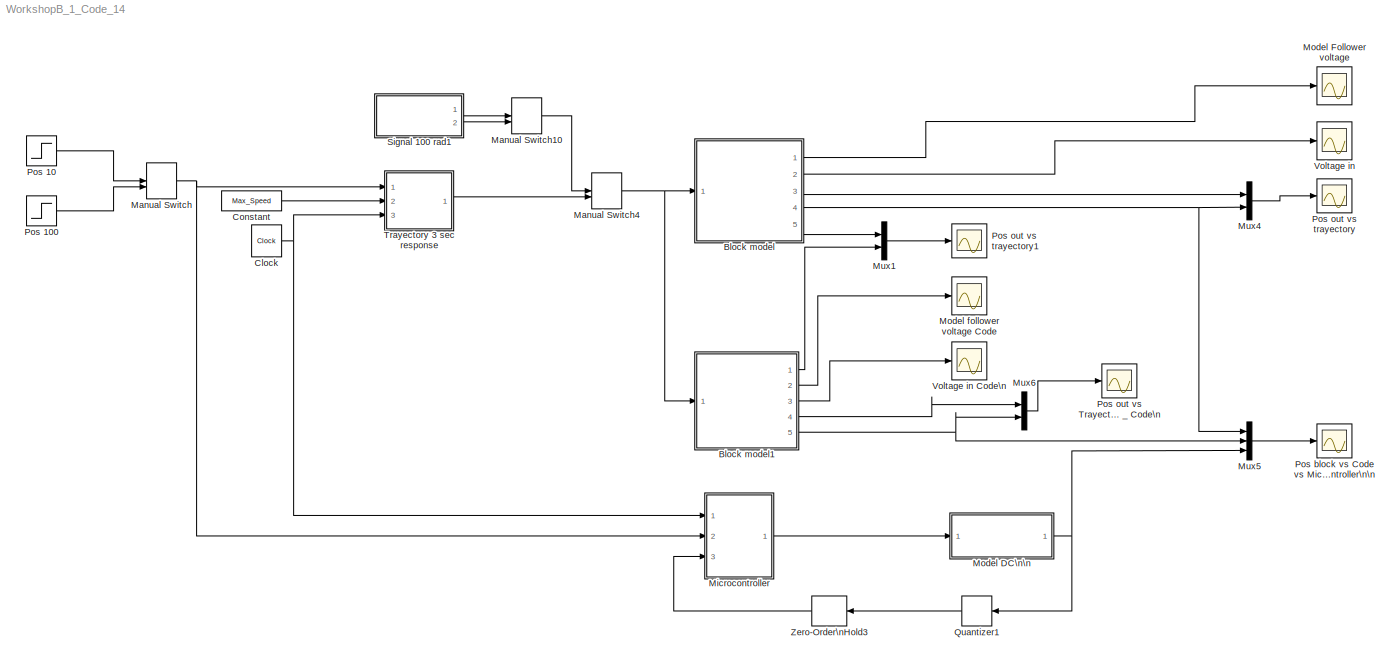
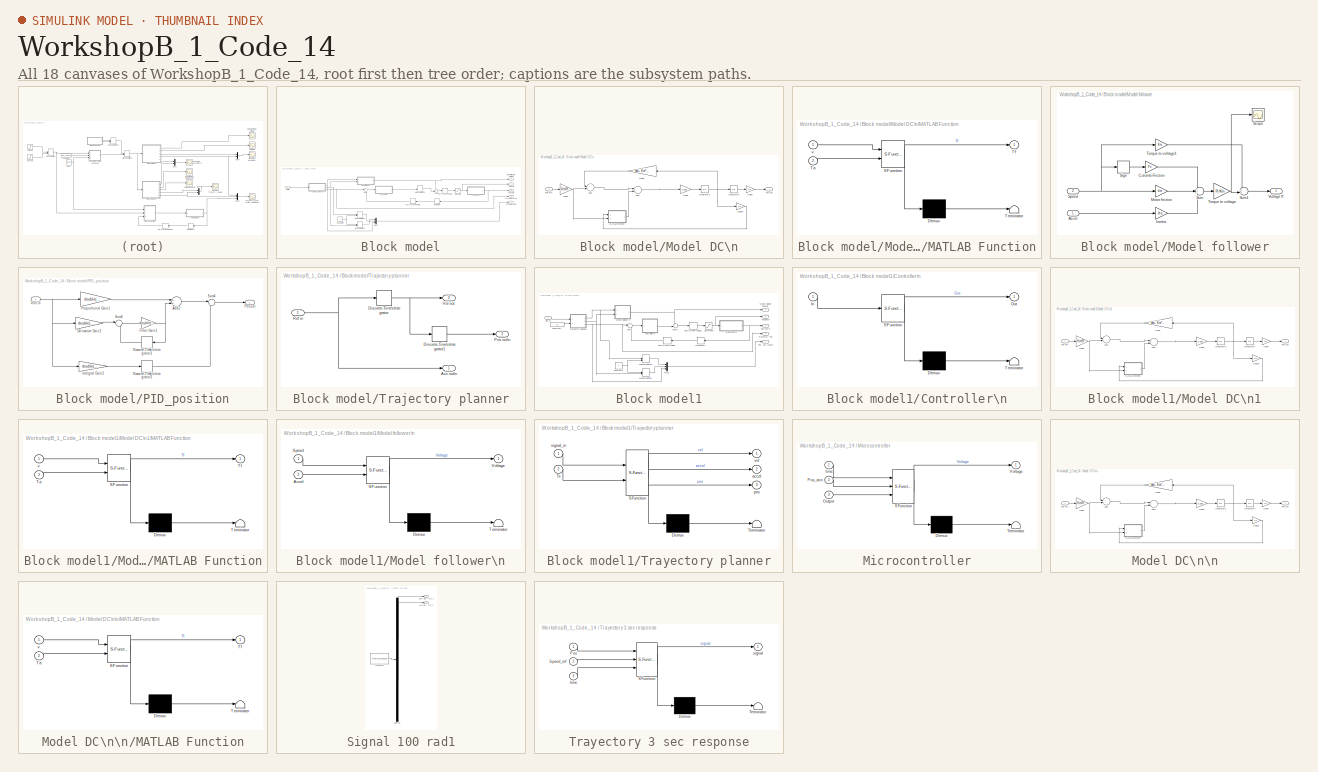
[diagram: thumbnail index - all 18 canvases of the model, root first then tree order]
MODEL WorkshopB_1_Code_14
KIND model
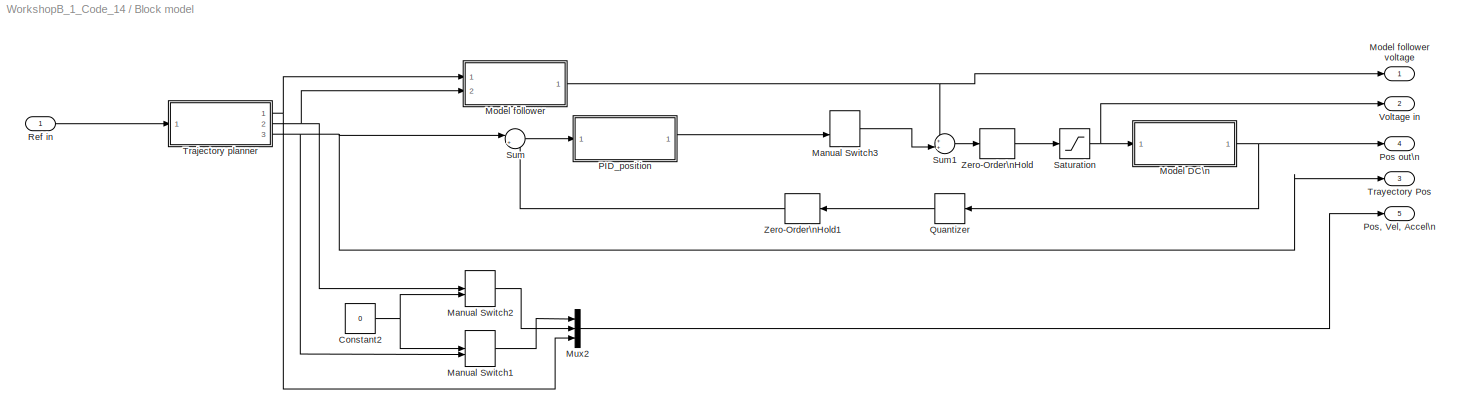
BLOCK [SubSystem] Block model
  Ports = [1, 5]
  RequestExecContextInheritance = off
  SID = 424
  Variant = off
BLOCK [Constant] Block model/Constant2
  SID = 488
  Value = 0
BLOCK [ManualSwitch] Block model/Manual Switch1
  CurrentSetting = 0
  SID = 489
BLOCK [ManualSwitch] Block model/Manual Switch2
  SID = 490
BLOCK [ManualSwitch] Block model/Manual Switch3
  CurrentSetting = 0
  SID = 491
BLOCK [SubSystem] Block model/Model DC\n
  Ports = [1, 1]
  RequestExecContextInheritance = off
  SID = 492
  Variant = off
BLOCK [Sum] Block model/Model DC\n/Add2
  InputSameDT = off
  Inputs = -+
  OutDataTypeStr = Inherit: Inherit via internal rule
  Ports = [2, 1]
  SID = 494
  SaturateOnIntegerOverflow = off
BLOCK [Sum] Block model/Model DC\n/Add3
  InputSameDT = off
  Inputs = +-
  OutDataTypeStr = Inherit: Inherit via internal rule
  Ports = [2, 1]
  SID = 495
  SaturateOnIntegerOverflow = off
BLOCK [Gain] Block model/Model DC\n/Gain10
  Gain = 1/n
  OutDataTypeStr = Inherit: Inherit via internal rule
  ParamDataTypeStr = Inherit: Inherit via internal rule
  SID = 496
  SaturateOnIntegerOverflow = off
BLOCK [Gain] Block model/Model DC\n/Gain2
  Gain = Km/R
  OutDataTypeStr = Inherit: Inherit via internal rule
  ParamDataTypeStr = Inherit: Inherit via internal rule
  SID = 497
  SaturateOnIntegerOverflow = off
BLOCK [Gain] Block model/Model DC\n/Gain3
  Gain = dm+ Km*Kemf/R
  OutDataTypeStr = Inherit: Inherit via internal rule
  ParamDataTypeStr = Inherit: Inherit via internal rule
  SID = 498
  SaturateOnIntegerOverflow = off
BLOCK [Gain] Block model/Model DC\n/Gain5
  Gain = 1/Jeq
  OutDataTypeStr = Inherit: Inherit via internal rule
  ParamDataTypeStr = Inherit: Inherit via internal rule
  SID = 499
  SaturateOnIntegerOverflow = off
BLOCK [Gain] Block model/Model DC\n/Gain9
  Gain = 1/n
  OutDataTypeStr = Inherit: Inherit via internal rule
  ParamDataTypeStr = Inherit: Inherit via internal rule
  SID = 500
  SaturateOnIntegerOverflow = off
BLOCK [Integrator] Block model/Model DC\n/Integrator3
  Ports = [1, 1]
  SID = 501
BLOCK [Integrator] Block model/Model DC\n/Integrator4
  Ports = [1, 1]
  SID = 502
BLOCK [SubSystem] Block model/Model DC\n/MATLAB Function
  ErrorFcn = Stateflow.Translate.translate
  PermitHierarchicalResolution = ParametersOnly
  Ports = [2, 1]
  RequestExecContextInheritance = off
  SFBlockType = MATLAB Function
  SID = 503
  TreatAsAtomicUnit = on
  Variant = off
BLOCK [Demux] Block model/Model DC\n/MATLAB Function/ Demux 
  Outputs = 1
  Ports = [1, 1]
  SID = 503::24
BLOCK [S-Function] Block model/Model DC\n/MATLAB Function/ SFunction 
  EnableBusSupport = on
  FunctionName = sf_sfun
  PortCounts = [2 2]
  Ports = [2, 2]
  SFunctionDeploymentMode = off
  SID = 503::23
  Tag = Stateflow S-Function WorkshopB_1_Code_14 2
BLOCK [Terminator] Block model/Model DC\n/MATLAB Function/ Terminator 
  SID = 503::25
BLOCK [Inport] Block model/Model DC\n/MATLAB Function/Ta
  IconDisplay = Port number
  Port = 2
  SID = 503::19
BLOCK [Outport] Block model/Model DC\n/MATLAB Function/Tf
  IconDisplay = Port number
  SID = 503::5
BLOCK [Inport] Block model/Model DC\n/MATLAB Function/v
  IconDisplay = Port number
  SID = 503::1
BLOCK [Outport] Block model/Model DC\n/Pos out
  IconDisplay = Port number
  SID = 504
BLOCK [Inport] Block model/Model DC\n/Volt in\n
  IconDisplay = Port number
  SID = 493
BLOCK [SubSystem] Block model/Model follower
  Ports = [2, 1]
  RequestExecContextInheritance = off
  SID = 505
  Variant = off
BLOCK [Outport] Block model/Model follower voltage
  IconDisplay = Port number
  SID = 429
BLOCK [Inport] Block model/Model follower/Accel
  IconDisplay = Port number
  SID = 507
BLOCK [Gain] Block model/Model follower/Culomb Friction
  Gain = Fc
  OutDataTypeStr = Inherit: Inherit via internal rule
  ParamDataTypeStr = Inherit: Inherit via internal rule
  SID = 508
  SaturateOnIntegerOverflow = off
BLOCK [Gain] Block model/Model follower/Inertia 
  Gain = Jeq
  OutDataTypeStr = Inherit: Inherit via internal rule
  ParamDataTypeStr = Inherit: Inherit via internal rule
  SID = 509
  SaturateOnIntegerOverflow = off
BLOCK [Gain] Block model/Model follower/Motor friction
  Gain = dm
  OutDataTypeStr = Inherit: Inherit via internal rule
  ParamDataTypeStr = Inherit: Inherit via internal rule
  SID = 510
  SaturateOnIntegerOverflow = off
BLOCK [Scope] Block model/Model follower/Scope
  DataFormat = Array
  Decimation = 1
  Grid = on
  LimitDataPoints = on
  MaxDataPoints = 5000
  Ports = [1]
  SID = 511
  SampleInput = off
  SampleTime = -1
  SaveName = ScopeData5
  SaveToWorkspace = off
  ShowLegends = off
  TickLabels = OneTimeTick
  TimeRange = auto
  YMax = 10
  YMin = -10
  ZoomMode = on
BLOCK [Signum] Block model/Model follower/Sign
  SID = 512
BLOCK [Inport] Block model/Model follower/Speed
  IconDisplay = Port number
  Port = 2
  SID = 506
BLOCK [Sum] Block model/Model follower/Sum
  IconShape = round
  InputSameDT = off
  Inputs = +++
  OutDataTypeStr = Inherit: Inherit via internal rule
  Ports = [3, 1]
  SID = 513
  SaturateOnIntegerOverflow = off
BLOCK [Sum] Block model/Model follower/Sum1
  IconShape = round
  InputSameDT = off
  Inputs = ++|
  OutDataTypeStr = Inherit: Inherit via internal rule
  Ports = [2, 1]
  SID = 514
  SaturateOnIntegerOverflow = off
BLOCK [Gain] Block model/Model follower/Torque to voltage
  Gain = R/Km
  OutDataTypeStr = Inherit: Inherit via internal rule
  ParamDataTypeStr = Inherit: Inherit via internal rule
  SID = 515
  SaturateOnIntegerOverflow = off
BLOCK [Gain] Block model/Model follower/Torque to voltage1
  Gain = Km
  OutDataTypeStr = Inherit: Inherit via internal rule
  ParamDataTypeStr = Inherit: Inherit via internal rule
  SID = 516
  SaturateOnIntegerOverflow = off
BLOCK [Outport] Block model/Model follower/Voltage ff
  IconDisplay = Port number
  SID = 517
BLOCK [Mux] Block model/Mux2
  DisplayOption = bar
  Inputs = 3
  Ports = [3, 1]
  SID = 518
BLOCK [SubSystem] Block model/PID_position
  Ports = [1, 1]
  RequestExecContextInheritance = off
  SID = 519
  Variant = off
BLOCK [Sum] Block model/PID_position/Add2
  InputSameDT = off
  OutDataTypeStr = Inherit: Inherit via internal rule
  Ports = [2, 1]
  SID = 521
  SaturateOnIntegerOverflow = off
BLOCK [Gain] Block model/PID_position/Derivative Gain2
  Gain = double(Dpos)
  OutDataTypeStr = Inherit: Inherit via internal rule
  ParamDataTypeStr = Inherit: Inherit via internal rule
  SID = 522
  SaturateOnIntegerOverflow = off
BLOCK [DiscreteIntegrator] Block model/PID_position/Discrete-Time\nIntegrator1
  ICPrevOutput = DiscIntNeverNeededParam
  ICPrevScaledInput = DiscIntNeverNeededParam
  InitialConditionSetting = State (most efficient)
  Ports = [1, 1]
  SID = 523
  SampleTime = Ts
BLOCK [DiscreteIntegrator] Block model/PID_position/Discrete-Time\nIntegrator2
  ICPrevOutput = DiscIntNeverNeededParam
  ICPrevScaledInput = DiscIntNeverNeededParam
  InitialConditionSetting = State (most efficient)
  Ports = [1, 1]
  SID = 524
  SampleTime = Ts
BLOCK [Gain] Block model/PID_position/Filter Gain1
  Gain = double(Npos)
  OutDataTypeStr = Inherit: Inherit via internal rule
  ParamDataTypeStr = Inherit: Inherit via internal rule
  SID = 525
  SaturateOnIntegerOverflow = off
BLOCK [Gain] Block model/PID_position/Integral Gain2
  Gain = double(Ipos)
  OutDataTypeStr = Inherit: Inherit via internal rule
  ParamDataTypeStr = Inherit: Inherit via internal rule
  SID = 526
  SaturateOnIntegerOverflow = off
BLOCK [Outport] Block model/PID_position/Pos out
  IconDisplay = Port number
  SID = 530
BLOCK [Gain] Block model/PID_position/Proportional Gain1
  Gain = double(Ppos)
  OutDataTypeStr = Inherit: Inherit via internal rule
  ParamDataTypeStr = Inherit: Inherit via internal rule
  SID = 527
  SaturateOnIntegerOverflow = off
BLOCK [Sum] Block model/PID_position/Sum2
  IconShape = round
  InputSameDT = off
  Inputs = |+-
  OutDataTypeStr = Inherit: Inherit via internal rule
  Ports = [2, 1]
  SID = 528
  SaturateOnIntegerOverflow = off
BLOCK [Sum] Block model/PID_position/Sum4
  IconShape = round
  InputSameDT = off
  Inputs = |++
  OutDataTypeStr = Inherit: Inherit via internal rule
  Ports = [2, 1]
  SID = 529
  SaturateOnIntegerOverflow = off
BLOCK [Inport] Block model/PID_position/Volt in
  IconDisplay = Port number
  SID = 520
BLOCK [Outport] Block model/Pos out\n
  IconDisplay = Port number
  Port = 4
  SID = 430
BLOCK [Outport] Block model/Pos, Vel, Accel\n
  IconDisplay = Port number
  Port = 5
  SID = 544
BLOCK [Quantizer] Block model/Quantizer
  QuantizationInterval = Pulses
  SID = 531
  SampleTime = Ts
BLOCK [Inport] Block model/Ref in
  IconDisplay = Port number
  SID = 425
BLOCK [Saturate] Block model/Saturation
  InputPortMap = u0
  LowerLimit = -24
  Ports = [1, 1]
  SID = 686
  UpperLimit = 24
BLOCK [Sum] Block model/Sum
  IconShape = round
  InputSameDT = off
  Inputs = |+-
  OutDataTypeStr = Inherit: Inherit via internal rule
  Ports = [2, 1]
  SID = 532
  SaturateOnIntegerOverflow = off
BLOCK [Sum] Block model/Sum1
  IconShape = round
  InputSameDT = off
  Inputs = ++|
  OutDataTypeStr = Inherit: Inherit via internal rule
  Ports = [2, 1]
  SID = 533
  SaturateOnIntegerOverflow = off
BLOCK [SubSystem] Block model/Trajectory planner
  Ports = [1, 3]
  RequestExecContextInheritance = off
  SID = 534
  Variant = off
BLOCK [Outport] Block model/Trajectory planner/Acc out\n
  IconDisplay = Port number
  SID = 538
BLOCK [DiscreteIntegrator] Block model/Trajectory planner/Discrete-Time\nIntegrator
  ICPrevOutput = DiscIntNeverNeededParam
  ICPrevScaledInput = DiscIntNeverNeededParam
  InitialConditionSetting = State (most efficient)
  Ports = [1, 1]
  SID = 536
  SampleTime = Ts
BLOCK [DiscreteIntegrator] Block model/Trajectory planner/Discrete-Time\nIntegrator1
  ICPrevOutput = DiscIntNeverNeededParam
  ICPrevScaledInput = DiscIntNeverNeededParam
  InitialConditionSetting = State (most efficient)
  Ports = [1, 1]
  SID = 537
  SampleTime = Ts
BLOCK [Outport] Block model/Trajectory planner/Pos out\n
  IconDisplay = Port number
  Port = 3
  SID = 540
BLOCK [Inport] Block model/Trajectory planner/Ref in
  IconDisplay = Port number
  SID = 535
BLOCK [Outport] Block model/Trajectory planner/Vel out
  IconDisplay = Port number
  Port = 2
  SID = 539
BLOCK [Outport] Block model/Trayectory Pos
  IconDisplay = Port number
  Port = 3
  SID = 428
BLOCK [Outport] Block model/Voltage in
  IconDisplay = Port number
  Port = 2
  SID = 543
BLOCK [ZeroOrderHold] Block model/Zero-Order\nHold
  SID = 541
  SampleTime = Ts
BLOCK [ZeroOrderHold] Block model/Zero-Order\nHold1
  SID = 542
  SampleTime = Ts
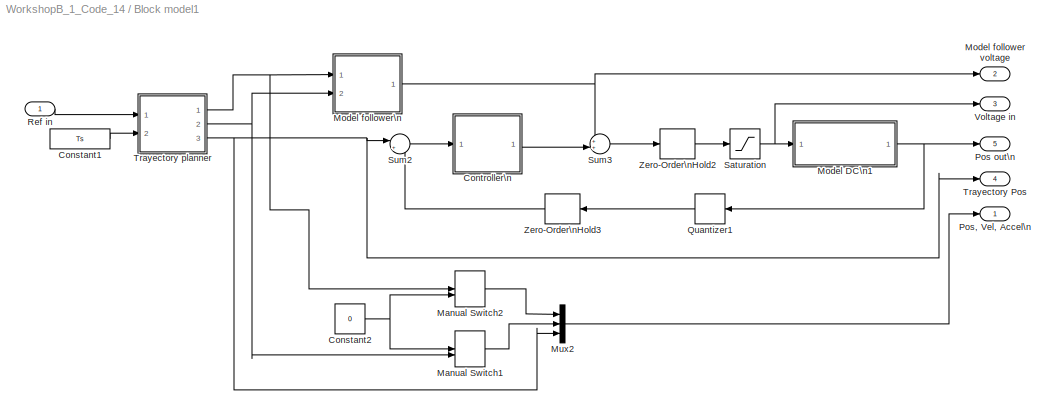
BLOCK [SubSystem] Block model1
  Ports = [1, 5]
  RequestExecContextInheritance = off
  SID = 545
  Variant = off
BLOCK [Constant] Block model1/Constant1
  SID = 607
  Value = Ts
BLOCK [Constant] Block model1/Constant2
  SID = 629
  Value = 0
BLOCK [SubSystem] Block model1/Controller\n
  ErrorFcn = Stateflow.Translate.translate
  PermitHierarchicalResolution = ParametersOnly
  Ports = [1, 1]
  RequestExecContextInheritance = off
  SFBlockType = MATLAB Function
  SID = 608
  SystemSampleTime = Ts
  TreatAsAtomicUnit = on
  Variant = off
BLOCK [Demux] Block model1/Controller\n/ Demux 
  Outputs = 1
  Ports = [1, 1]
  SID = 608::27
BLOCK [S-Function] Block model1/Controller\n/ SFunction 
  EnableBusSupport = on
  FunctionName = sf_sfun
  PortCounts = [1 2]
  Ports = [1, 2]
  SFunctionDeploymentMode = off
  SID = 608::26
  Tag = Stateflow S-Function WorkshopB_1_Code_14 3
BLOCK [Terminator] Block model1/Controller\n/ Terminator 
  SID = 608::28
BLOCK [Inport] Block model1/Controller\n/In
  IconDisplay = Port number
  SID = 608::1
BLOCK [Outport] Block model1/Controller\n/Out
  IconDisplay = Port number
  SID = 608::5
BLOCK [ManualSwitch] Block model1/Manual Switch1
  CurrentSetting = 0
  SID = 630
BLOCK [ManualSwitch] Block model1/Manual Switch2
  SID = 631
BLOCK [SubSystem] Block model1/Model DC\n1
  Ports = [1, 1]
  RequestExecContextInheritance = off
  SID = 609
  Variant = off
BLOCK [Sum] Block model1/Model DC\n1/Add2
  InputSameDT = off
  Inputs = -+
  OutDataTypeStr = Inherit: Inherit via internal rule
  Ports = [2, 1]
  SID = 611
  SaturateOnIntegerOverflow = off
BLOCK [Sum] Block model1/Model DC\n1/Add3
  InputSameDT = off
  Inputs = +-
  OutDataTypeStr = Inherit: Inherit via internal rule
  Ports = [2, 1]
  SID = 612
  SaturateOnIntegerOverflow = off
BLOCK [Gain] Block model1/Model DC\n1/Gain10
  Gain = 1/n
  OutDataTypeStr = Inherit: Inherit via internal rule
  ParamDataTypeStr = Inherit: Inherit via internal rule
  SID = 613
  SaturateOnIntegerOverflow = off
BLOCK [Gain] Block model1/Model DC\n1/Gain2
  Gain = Km/R
  OutDataTypeStr = Inherit: Inherit via internal rule
  ParamDataTypeStr = Inherit: Inherit via internal rule
  SID = 614
  SaturateOnIntegerOverflow = off
BLOCK [Gain] Block model1/Model DC\n1/Gain3
  Gain = dm+ Km*Kemf/R
  OutDataTypeStr = Inherit: Inherit via internal rule
  ParamDataTypeStr = Inherit: Inherit via internal rule
  SID = 615
  SaturateOnIntegerOverflow = off
BLOCK [Gain] Block model1/Model DC\n1/Gain5
  Gain = 1/Jeq
  OutDataTypeStr = Inherit: Inherit via internal rule
  ParamDataTypeStr = Inherit: Inherit via internal rule
  SID = 616
  SaturateOnIntegerOverflow = off
BLOCK [Gain] Block model1/Model DC\n1/Gain9
  Gain = 1/n
  OutDataTypeStr = Inherit: Inherit via internal rule
  ParamDataTypeStr = Inherit: Inherit via internal rule
  SID = 617
  SaturateOnIntegerOverflow = off
BLOCK [Integrator] Block model1/Model DC\n1/Integrator3
  Ports = [1, 1]
  SID = 618
BLOCK [Integrator] Block model1/Model DC\n1/Integrator4
  Ports = [1, 1]
  SID = 619
BLOCK [SubSystem] Block model1/Model DC\n1/MATLAB Function
  ErrorFcn = Stateflow.Translate.translate
  PermitHierarchicalResolution = ParametersOnly
  Ports = [2, 1]
  RequestExecContextInheritance = off
  SFBlockType = MATLAB Function
  SID = 620
  TreatAsAtomicUnit = on
  Variant = off
BLOCK [Demux] Block model1/Model DC\n1/MATLAB Function/ Demux 
  Outputs = 1
  Ports = [1, 1]
  SID = 620::24
BLOCK [S-Function] Block model1/Model DC\n1/MATLAB Function/ SFunction 
  EnableBusSupport = on
  FunctionName = sf_sfun
  PortCounts = [2 2]
  Ports = [2, 2]
  SFunctionDeploymentMode = off
  SID = 620::23
  Tag = Stateflow S-Function WorkshopB_1_Code_14 8
BLOCK [Terminator] Block model1/Model DC\n1/MATLAB Function/ Terminator 
  SID = 620::25
BLOCK [Inport] Block model1/Model DC\n1/MATLAB Function/Ta
  IconDisplay = Port number
  Port = 2
  SID = 620::19
BLOCK [Outport] Block model1/Model DC\n1/MATLAB Function/Tf
  IconDisplay = Port number
  SID = 620::5
BLOCK [Inport] Block model1/Model DC\n1/MATLAB Function/v
  IconDisplay = Port number
  SID = 620::1
BLOCK [Outport] Block model1/Model DC\n1/Pos out
  IconDisplay = Port number
  SID = 621
BLOCK [Inport] Block model1/Model DC\n1/Volt in\n
  IconDisplay = Port number
  SID = 610
BLOCK [Outport] Block model1/Model follower voltage
  IconDisplay = Port number
  Port = 2
  SID = 603
BLOCK [SubSystem] Block model1/Model follower\n
  ErrorFcn = Stateflow.Translate.translate
  PermitHierarchicalResolution = ParametersOnly
  Ports = [2, 1]
  RequestExecContextInheritance = off
  SFBlockType = MATLAB Function
  SID = 622
  SystemSampleTime = Ts
  TreatAsAtomicUnit = on
  Variant = off
BLOCK [Demux] Block model1/Model follower\n/ Demux 
  Outputs = 1
  Ports = [1, 1]
  SID = 622::27
BLOCK [S-Function] Block model1/Model follower\n/ SFunction 
  EnableBusSupport = on
  FunctionName = sf_sfun
  PortCounts = [2 2]
  Ports = [2, 2]
  SFunctionDeploymentMode = off
  SID = 622::26
  Tag = Stateflow S-Function WorkshopB_1_Code_14 9
BLOCK [Terminator] Block model1/Model follower\n/ Terminator 
  SID = 622::28
BLOCK [Inport] Block model1/Model follower\n/Accel
  IconDisplay = Port number
  Port = 2
  SID = 622::31
BLOCK [Inport] Block model1/Model follower\n/Speed
  IconDisplay = Port number
  SID = 622::1
BLOCK [Outport] Block model1/Model follower\n/Voltage
  IconDisplay = Port number
  SID = 622::5
BLOCK [Mux] Block model1/Mux2
  DisplayOption = bar
  Inputs = 3
  Ports = [3, 1]
  SID = 632
BLOCK [Outport] Block model1/Pos out\n
  IconDisplay = Port number
  Port = 5
  SID = 605
BLOCK [Outport] Block model1/Pos, Vel, Accel\n
  IconDisplay = Port number
  SID = 606
BLOCK [Quantizer] Block model1/Quantizer1
  QuantizationInterval = Pulses
  SID = 623
  SampleTime = Ts
BLOCK [Inport] Block model1/Ref in
  IconDisplay = Port number
  SID = 546
BLOCK [Saturate] Block model1/Saturation
  InputPortMap = u0
  LowerLimit = -24
  Ports = [1, 1]
  SID = 687
  UpperLimit = 24
BLOCK [Sum] Block model1/Sum2
  IconShape = round
  InputSameDT = off
  Inputs = |+-
  OutDataTypeStr = Inherit: Inherit via internal rule
  Ports = [2, 1]
  SID = 624
  SaturateOnIntegerOverflow = off
BLOCK [Sum] Block model1/Sum3
  IconShape = round
  InputSameDT = off
  Inputs = ++|
  OutDataTypeStr = Inherit: Inherit via internal rule
  Ports = [2, 1]
  SID = 625
  SaturateOnIntegerOverflow = off
BLOCK [Outport] Block model1/Trayectory Pos
  IconDisplay = Port number
  Port = 4
  SID = 602
BLOCK [SubSystem] Block model1/Trayectory planner
  ErrorFcn = Stateflow.Translate.translate
  PermitHierarchicalResolution = ParametersOnly
  Ports = [2, 3]
  RequestExecContextInheritance = off
  SFBlockType = MATLAB Function
  SID = 626
  SystemSampleTime = Ts
  TreatAsAtomicUnit = on
  Variant = off
BLOCK [Demux] Block model1/Trayectory planner/ Demux 
  Outputs = 1
  Ports = [1, 1]
  SID = 626::27
BLOCK [S-Function] Block model1/Trayectory planner/ SFunction 
  EnableBusSupport = on
  FunctionName = sf_sfun
  PortCounts = [2 4]
  Ports = [2, 4]
  SFunctionDeploymentMode = off
  SID = 626::26
  Tag = Stateflow S-Function WorkshopB_1_Code_14 10
BLOCK [Terminator] Block model1/Trayectory planner/ Terminator 
  SID = 626::28
BLOCK [Inport] Block model1/Trayectory planner/Ts
  IconDisplay = Port number
  Port = 2
  SID = 626::31
BLOCK [Outport] Block model1/Trayectory planner/accel
  IconDisplay = Port number
  Port = 2
  SID = 626::30
BLOCK [Outport] Block model1/Trayectory planner/pos
  IconDisplay = Port number
  Port = 3
  SID = 626::5
BLOCK [Inport] Block model1/Trayectory planner/signal_in
  IconDisplay = Port number
  SID = 626::1
BLOCK [Outport] Block model1/Trayectory planner/vel
  IconDisplay = Port number
  SID = 626::29
BLOCK [Outport] Block model1/Voltage in
  IconDisplay = Port number
  Port = 3
  SID = 604
BLOCK [ZeroOrderHold] Block model1/Zero-Order\nHold2
  SID = 627
  SampleTime = Ts
BLOCK [ZeroOrderHold] Block model1/Zero-Order\nHold3
  SID = 628
  SampleTime = Ts
BLOCK [Clock] Clock
  Decimation = 1
  DisplayTime = on
  SID = 156
BLOCK [Constant] Constant
  SID = 166
  Value = Max_Speed
BLOCK [ManualSwitch] Manual Switch
  SID = 159
BLOCK [ManualSwitch] Manual Switch10
  CurrentSetting = 0
  SID = 319
BLOCK [ManualSwitch] Manual Switch4
  CurrentSetting = 0
  SID = 290
BLOCK [SubSystem] Microcontroller
  ErrorFcn = Stateflow.Translate.translate
  PermitHierarchicalResolution = ParametersOnly
  Ports = [3, 1]
  RequestExecContextInheritance = off
  SFBlockType = MATLAB Function
  SID = 635
  SystemSampleTime = Ts
  TreatAsAtomicUnit = on
  Variant = off
BLOCK [Demux] Microcontroller/ Demux 
  Outputs = 1
  Ports = [1, 1]
  SID = 635::27
BLOCK [S-Function] Microcontroller/ SFunction 
  EnableBusSupport = on
  FunctionName = sf_sfun
  PortCounts = [3 2]
  Ports = [3, 2]
  SFunctionDeploymentMode = off
  SID = 635::26
  Tag = Stateflow S-Function WorkshopB_1_Code_14 1
BLOCK [Terminator] Microcontroller/ Terminator 
  SID = 635::28
BLOCK [Inport] Microcontroller/Output
  IconDisplay = Port number
  Port = 3
  SID = 635::1
BLOCK [Inport] Microcontroller/Pos_aim
  IconDisplay = Port number
  Port = 2
  SID = 635::19
BLOCK [Outport] Microcontroller/Voltage
  IconDisplay = Port number
  SID = 635::5
BLOCK [Inport] Microcontroller/time
  IconDisplay = Port number
  SID = 635::29
BLOCK [SubSystem] Model DC\n\n
  Ports = [1, 1]
  RequestExecContextInheritance = off
  SID = 640
  Variant = off
BLOCK [Sum] Model DC\n\n/Add2
  InputSameDT = off
  Inputs = -+
  OutDataTypeStr = Inherit: Inherit via internal rule
  Ports = [2, 1]
  SID = 642
  SaturateOnIntegerOverflow = off
BLOCK [Sum] Model DC\n\n/Add3
  InputSameDT = off
  Inputs = +-
  OutDataTypeStr = Inherit: Inherit via internal rule
  Ports = [2, 1]
  SID = 643
  SaturateOnIntegerOverflow = off
BLOCK [Gain] Model DC\n\n/Gain10
  Gain = 1/n
  OutDataTypeStr = Inherit: Inherit via internal rule
  ParamDataTypeStr = Inherit: Inherit via internal rule
  SID = 644
  SaturateOnIntegerOverflow = off
BLOCK [Gain] Model DC\n\n/Gain2
  Gain = Km/R
  OutDataTypeStr = Inherit: Inherit via internal rule
  ParamDataTypeStr = Inherit: Inherit via internal rule
  SID = 645
  SaturateOnIntegerOverflow = off
BLOCK [Gain] Model DC\n\n/Gain3
  Gain = dm+ Km*Kemf/R
  OutDataTypeStr = Inherit: Inherit via internal rule
  ParamDataTypeStr = Inherit: Inherit via internal rule
  SID = 646
  SaturateOnIntegerOverflow = off
BLOCK [Gain] Model DC\n\n/Gain5
  Gain = 1/Jeq
  OutDataTypeStr = Inherit: Inherit via internal rule
  ParamDataTypeStr = Inherit: Inherit via internal rule
  SID = 647
  SaturateOnIntegerOverflow = off
BLOCK [Gain] Model DC\n\n/Gain9
  Gain = 1/n
  OutDataTypeStr = Inherit: Inherit via internal rule
  ParamDataTypeStr = Inherit: Inherit via internal rule
  SID = 648
  SaturateOnIntegerOverflow = off
BLOCK [Integrator] Model DC\n\n/Integrator3
  Ports = [1, 1]
  SID = 649
BLOCK [Integrator] Model DC\n\n/Integrator4
  Ports = [1, 1]
  SID = 650
BLOCK [SubSystem] Model DC\n\n/MATLAB Function
  ErrorFcn = Stateflow.Translate.translate
  PermitHierarchicalResolution = ParametersOnly
  Ports = [2, 1]
  RequestExecContextInheritance = off
  SFBlockType = MATLAB Function
  SID = 651
  TreatAsAtomicUnit = on
  Variant = off
BLOCK [Demux] Model DC\n\n/MATLAB Function/ Demux 
  Outputs = 1
  Ports = [1, 1]
  SID = 651::24
BLOCK [S-Function] Model DC\n\n/MATLAB Function/ SFunction 
  EnableBusSupport = on
  FunctionName = sf_sfun
  PortCounts = [2 2]
  Ports = [2, 2]
  SFunctionDeploymentMode = off
  SID = 651::23
  Tag = Stateflow S-Function WorkshopB_1_Code_14 6
BLOCK [Terminator] Model DC\n\n/MATLAB Function/ Terminator 
  SID = 651::25
BLOCK [Inport] Model DC\n\n/MATLAB Function/Ta
  IconDisplay = Port number
  Port = 2
  SID = 651::19
BLOCK [Outport] Model DC\n\n/MATLAB Function/Tf
  IconDisplay = Port number
  SID = 651::5
BLOCK [Inport] Model DC\n\n/MATLAB Function/v
  IconDisplay = Port number
  SID = 651::1
BLOCK [Outport] Model DC\n\n/Pos out
  IconDisplay = Port number
  SID = 652
BLOCK [Inport] Model DC\n\n/Volt in\n
  IconDisplay = Port number
  SID = 641
BLOCK [Scope] Model Follower voltage
  DataFormat = Array
  Decimation = 1
  Grid = on
  LimitDataPoints = on
  MaxDataPoints = 5000
  Ports = [1]
  SID = 239
  SampleInput = off
  SampleTime = -1
  SaveName = ScopeData2
  SaveToWorkspace = off
  ShowLegends = off
  TickLabels = OneTimeTick
  TimeRange = auto
  YMax = 524.30498
  YMin = -74.05416
  ZoomMode = on
BLOCK [Scope] Model follower voltage Code
  DataFormat = Array
  Decimation = 1
  Grid = on
  LimitDataPoints = on
  MaxDataPoints = 5000
  Ports = [1]
  SID = 633
  SampleInput = off
  SampleTime = -1
  SaveName = ScopeData3
  SaveToWorkspace = off
  ShowLegends = off
  TickLabels = OneTimeTick
  TimeRange = auto
  YMax = 10
  YMin = -10
  ZoomMode = on
BLOCK [Mux] Mux1
  DisplayOption = bar
  Inputs = 2
  Ports = [2, 1]
  SID = 695
BLOCK [Mux] Mux4
  DisplayOption = bar
  Inputs = 2
  Ports = [2, 1]
  SID = 243
BLOCK [Mux] Mux5
  DisplayOption = bar
  Inputs = 3
  Ports = [3, 1]
  SID = 420
BLOCK [Mux] Mux6
  DisplayOption = bar
  Inputs = 2
  Ports = [2, 1]
  SID = 422
BLOCK [Step] Pos 10
  After = 10
  SID = 157
  SampleTime = 0
  Time = 0
BLOCK [Step] Pos 100
  After = 100
  SID = 158
  SampleTime = 0
  Time = 0
BLOCK [Scope] Pos block vs Code vs Microcontroller\n\n
  DataFormat = StructureWithTime
  Decimation = 1
  Grid = on
  LimitDataPoints = off
  MaxDataPoints = 5000
  Ports = [1]
  SID = 421
  SampleInput = off
  SampleTime = -1
  SaveName = ScopeData1
  SaveToWorkspace = off
  ShowLegends = off
  TickLabels = OneTimeTick
  TimeRange = auto
  YMax = 11.25205
  YMin = -1.25023
  ZoomMode = on
BLOCK [Scope] Pos out vs Trayectory _ Code\n
  DataFormat = StructureWithTime
  Decimation = 1
  Grid = on
  LimitDataPoints = off
  MaxDataPoints = 5000
  Ports = [1]
  SID = 423
  SampleInput = off
  SampleTime = -1
  SaveName = ScopeData2
  SaveToWorkspace = off
  ShowLegends = off
  TickLabels = OneTimeTick
  TimeRange = auto
  YMax = 11.25205
  YMin = -1.25023
  ZoomMode = on
BLOCK [Scope] Pos out vs trayectory
  DataFormat = Array
  Decimation = 1
  Grid = on
  LimitDataPoints = on
  MaxDataPoints = 5000
  Ports = [1]
  SID = 235
  SampleInput = off
  SampleTime = -1
  SaveName = ScopeData3
  SaveToWorkspace = off
  ShowLegends = off
  TickLabels = OneTimeTick
  TimeRange = 4
  YMax = 11.252
  YMin = -1.25022
  ZoomMode = on
BLOCK [Scope] Pos out vs trayectory1
  DataFormat = Array
  Decimation = 1
  Grid = on
  LimitDataPoints = on
  MaxDataPoints = 5000
  Ports = [1]
  SID = 696
  SampleInput = off
  SampleTime = -1
  SaveName = ScopeData5
  SaveToWorkspace = off
  ShowLegends = off
  TickLabels = OneTimeTick
  TimeRange = 4
  YMax = 112.50212
  YMin = -12.50024
  ZoomMode = on
BLOCK [Quantizer] Quantizer1
  QuantizationInterval = Pulses
  SID = 655
  SampleTime = Ts
BLOCK [SubSystem] Signal 100 rad1
  ClipboardFcn = sigbuilder_block('clipboard');
  CloseFcn = sigbuilder_block('close');
  ContinueFcn = sigbuilder_block('continue');
  CopyFcn = sigbuilder_block('copy');
  DeleteFcn = sigbuilder_block('delete');
  LoadFcn = sigbuilder_block('load');
  MaskHideContents = on
  ModelCloseFcn = sigbuilder_block('modelClose');
  NameChangeFcn = sigbuilder_block('namechange');
  OpenFcn = sigbuilder_block('open',[437.6 199.2 550.4 400 ]);
  PauseFcn = sigbuilder_block('pause');
  Ports = [0, 2]
  PreSaveFcn = sigbuilder_block('preSave');
  RequestExecContextInheritance = off
  SID = 366
  StartFcn = sigbuilder_block('start');
  StopFcn = sigbuilder_block('stop');
  Tag = STV Subsys
  Variant = off
BLOCK [Outport] Signal 100 rad1/10 rad - 0.5 s
  IconDisplay = Port number
  Port = 2
  SID = 366:11
  Tag = STV Outport
BLOCK [Outport] Signal 100 rad1/100 rad - 0.5 s
  IconDisplay = Port number
  SID = 366:9
  Tag = STV Outport
BLOCK [Demux] Signal 100 rad1/Demux
  Outputs = 2
  Ports = [1, 2]
  SID = 366:1
  Tag = STV Demux
BLOCK [FromWorkspace] Signal 100 rad1/FromWs
  SID = 366:2
  SampleTime = 0
  SigBuilderData = DataTag0
  Tag = STV FromWs
  VariableName = tuvar
  VnvData = DataTag1
  ZeroCross = on
BLOCK [SubSystem] Trayectory 3 sec response
  ErrorFcn = Stateflow.Translate.translate
  PermitHierarchicalResolution = ParametersOnly
  Ports = [3, 1]
  RequestExecContextInheritance = off
  SFBlockType = MATLAB Function
  SID = 288
  SystemSampleTime = 1e-3
  TreatAsAtomicUnit = on
  Variant = off
BLOCK [Demux] Trayectory 3 sec response/ Demux 
  Outputs = 1
  Ports = [1, 1]
  SID = 288::27
BLOCK [S-Function] Trayectory 3 sec response/ SFunction 
  EnableBusSupport = on
  FunctionName = sf_sfun
  PortCounts = [3 2]
  Ports = [3, 2]
  SFunctionDeploymentMode = off
  SID = 288::26
  Tag = Stateflow S-Function WorkshopB_1_Code_14 4
BLOCK [Terminator] Trayectory 3 sec response/ Terminator 
  SID = 288::28
BLOCK [Inport] Trayectory 3 sec response/Pos
  IconDisplay = Port number
  SID = 288::19
BLOCK [Inport] Trayectory 3 sec response/Speed_ref
  IconDisplay = Port number
  Port = 2
  SID = 288::25
BLOCK [Outport] Trayectory 3 sec response/signal
  IconDisplay = Port number
  SID = 288::5
BLOCK [Inport] Trayectory 3 sec response/time
  IconDisplay = Port number
  Port = 3
  SID = 288::1
BLOCK [Scope] Voltage in
  DataFormat = Array
  Decimation = 1
  Grid = on
  LimitDataPoints = on
  MaxDataPoints = 5000
  Ports = [1]
  SID = 245
  SampleInput = off
  SampleTime = -1
  SaveName = ScopeData4
  SaveToWorkspace = off
  ShowLegends = off
  TickLabels = OneTimeTick
  TimeRange = auto
  YMax = 11.94268
  YMin = -10.38658
  ZoomMode = on
BLOCK [Scope] Voltage in Code\n
  DataFormat = Array
  Decimation = 1
  Grid = on
  LimitDataPoints = on
  MaxDataPoints = 5000
  Ports = [1]
  SID = 634
  SampleInput = off
  SampleTime = -1
  SaveName = ScopeData4
  SaveToWorkspace = off
  ShowLegends = off
  TickLabels = OneTimeTick
  TimeRange = auto
  YMax = 10
  YMin = -10
  ZoomMode = on
BLOCK [ZeroOrderHold] Zero-Order\nHold3
  SID = 660
  SampleTime = Ts
NET Block model/Constant2:1 -> Block model/Manual Switch1:1, Block model/Manual Switch2:2
LINE Block model/Manual Switch1:1 -> Block model/Mux2:1
LINE Block model/Manual Switch2:1 -> Block model/Mux2:2
LINE Block model/Manual Switch3:1 -> Block model/Sum1:2
LINE Block model/Model DC\n/Add2:1 -> Block model/Model DC\n/Add3:1
LINE Block model/Model DC\n/Add3:1 -> Block model/Model DC\n/Gain5:1
LINE Block model/Model DC\n/Gain10:1 -> Block model/Model DC\n/MATLAB Function:1
NET Block model/Model DC\n/Gain2:1 -> Block model/Model DC\n/Add2:2, Block model/Model DC\n/MATLAB Function:2
LINE Block model/Model DC\n/Gain3:1 -> Block model/Model DC\n/Add2:1
LINE Block model/Model DC\n/Gain5:1 -> Block model/Model DC\n/Integrator3:1
LINE Block model/Model DC\n/Gain9:1 -> Block model/Model DC\n/Pos out:1
NET Block model/Model DC\n/Integrator3:1 -> Block model/Model DC\n/Gain10:1, Block model/Model DC\n/Gain3:1, Block model/Model DC\n/Integrator4:1
LINE Block model/Model DC\n/Integrator4:1 -> Block model/Model DC\n/Gain9:1
LINE Block model/Model DC\n/MATLAB Function/ Demux :1 -> Block model/Model DC\n/MATLAB Function/ Terminator :1
LINE Block model/Model DC\n/MATLAB Function/ SFunction :1 -> Block model/Model DC\n/MATLAB Function/ Demux :1
LINE Block model/Model DC\n/MATLAB Function/ SFunction :2 -> Block model/Model DC\n/MATLAB Function/Tf:1
LINE Block model/Model DC\n/MATLAB Function/Ta:1 -> Block model/Model DC\n/MATLAB Function/ SFunction :2
LINE Block model/Model DC\n/MATLAB Function/v:1 -> Block model/Model DC\n/MATLAB Function/ SFunction :1
LINE Block model/Model DC\n/MATLAB Function:1 -> Block model/Model DC\n/Add3:2
LINE Block model/Model DC\n/Volt in\n:1 -> Block model/Model DC\n/Gain2:1
NET Block model/Model DC\n:1 -> Block model/Pos out\n:1, Block model/Quantizer:1
LINE Block model/Model follower/Accel:1 -> Block model/Model follower/Inertia :1
LINE Block model/Model follower/Culomb Friction:1 -> Block model/Model follower/Sum:1
LINE Block model/Model follower/Inertia :1 -> Block model/Model follower/Sum:3
LINE Block model/Model follower/Motor friction:1 -> Block model/Model follower/Sum:2
LINE Block model/Model follower/Sign:1 -> Block model/Model follower/Culomb Friction:1
NET Block model/Model follower/Speed:1 -> Block model/Model follower/Motor friction:1, Block model/Model follower/Sign:1, Block model/Model follower/Torque to voltage1:1
LINE Block model/Model follower/Sum1:1 -> Block model/Model follower/Voltage ff:1
LINE Block model/Model follower/Sum:1 -> Block model/Model follower/Torque to voltage:1
LINE Block model/Model follower/Torque to voltage1:1 -> Block model/Model follower/Sum1:1
NET Block model/Model follower/Torque to voltage:1 -> Block model/Model follower/Scope:1, Block model/Model follower/Sum1:2
NET Block model/Model follower:1 -> Block model/Model follower voltage:1, Block model/Sum1:1
LINE Block model/Mux2:1 -> Block model/Pos, Vel, Accel\n:1
LINE Block model/PID_position/Add2:1 -> Block model/PID_position/Sum4:1
LINE Block model/PID_position/Derivative Gain2:1 -> Block model/PID_position/Sum2:1
LINE Block model/PID_position/Discrete-Time\nIntegrator1:1 -> Block model/PID_position/Sum2:2
LINE Block model/PID_position/Discrete-Time\nIntegrator2:1 -> Block model/PID_position/Sum4:2
NET Block model/PID_position/Filter Gain1:1 -> Block model/PID_position/Add2:2, Block model/PID_position/Discrete-Time\nIntegrator1:1
LINE Block model/PID_position/Integral Gain2:1 -> Block model/PID_position/Discrete-Time\nIntegrator2:1
LINE Block model/PID_position/Proportional Gain1:1 -> Block model/PID_position/Add2:1
LINE Block model/PID_position/Sum2:1 -> Block model/PID_position/Filter Gain1:1
LINE Block model/PID_position/Sum4:1 -> Block model/PID_position/Pos out:1
NET Block model/PID_position/Volt in:1 -> Block model/PID_position/Derivative Gain2:1, Block model/PID_position/Integral Gain2:1, Block model/PID_position/Proportional Gain1:1
LINE Block model/PID_position:1 -> Block model/Manual Switch3:2
LINE Block model/Quantizer:1 -> Block model/Zero-Order\nHold1:1
LINE Block model/Ref in:1 -> Block model/Trajectory planner:1
NET Block model/Saturation:1 -> Block model/Model DC\n:1, Block model/Voltage in:1
LINE Block model/Sum1:1 -> Block model/Zero-Order\nHold:1
LINE Block model/Sum:1 -> Block model/PID_position:1
LINE Block model/Trajectory planner/Discrete-Time\nIntegrator1:1 -> Block model/Trajectory planner/Pos out\n:1
NET Block model/Trajectory planner/Discrete-Time\nIntegrator:1 -> Block model/Trajectory planner/Discrete-Time\nIntegrator1:1, Block model/Trajectory planner/Vel out:1
NET Block model/Trajectory planner/Ref in:1 -> Block model/Trajectory planner/Acc out\n:1, Block model/Trajectory planner/Discrete-Time\nIntegrator:1
NET Block model/Trajectory planner:1 -> Block model/Model follower:1, Block model/Mux2:3
NET Block model/Trajectory planner:2 -> Block model/Manual Switch2:1, Block model/Model follower:2
NET Block model/Trajectory planner:3 -> Block model/Manual Switch1:2, Block model/Sum:1, Block model/Trayectory Pos:1
LINE Block model/Zero-Order\nHold1:1 -> Block model/Sum:2
LINE Block model/Zero-Order\nHold:1 -> Block model/Saturation:1
LINE Block model1/Constant1:1 -> Block model1/Trayectory planner:2
NET Block model1/Constant2:1 -> Block model1/Manual Switch1:1, Block model1/Manual Switch2:2
LINE Block model1/Controller\n/ Demux :1 -> Block model1/Controller\n/ Terminator :1
LINE Block model1/Controller\n/ SFunction :1 -> Block model1/Controller\n/ Demux :1
LINE Block model1/Controller\n/ SFunction :2 -> Block model1/Controller\n/Out:1
LINE Block model1/Controller\n/In:1 -> Block model1/Controller\n/ SFunction :1
LINE Block model1/Controller\n:1 -> Block model1/Sum3:2
LINE Block model1/Manual Switch1:1 -> Block model1/Mux2:2
LINE Block model1/Manual Switch2:1 -> Block model1/Mux2:1
LINE Block model1/Model DC\n1/Add2:1 -> Block model1/Model DC\n1/Add3:1
LINE Block model1/Model DC\n1/Add3:1 -> Block model1/Model DC\n1/Gain5:1
LINE Block model1/Model DC\n1/Gain10:1 -> Block model1/Model DC\n1/MATLAB Function:1
NET Block model1/Model DC\n1/Gain2:1 -> Block model1/Model DC\n1/Add2:2, Block model1/Model DC\n1/MATLAB Function:2
LINE Block model1/Model DC\n1/Gain3:1 -> Block model1/Model DC\n1/Add2:1
LINE Block model1/Model DC\n1/Gain5:1 -> Block model1/Model DC\n1/Integrator3:1
LINE Block model1/Model DC\n1/Gain9:1 -> Block model1/Model DC\n1/Pos out:1
NET Block model1/Model DC\n1/Integrator3:1 -> Block model1/Model DC\n1/Gain10:1, Block model1/Model DC\n1/Gain3:1, Block model1/Model DC\n1/Integrator4:1
LINE Block model1/Model DC\n1/Integrator4:1 -> Block model1/Model DC\n1/Gain9:1
LINE Block model1/Model DC\n1/MATLAB Function/ Demux :1 -> Block model1/Model DC\n1/MATLAB Function/ Terminator :1
LINE Block model1/Model DC\n1/MATLAB Function/ SFunction :1 -> Block model1/Model DC\n1/MATLAB Function/ Demux :1
LINE Block model1/Model DC\n1/MATLAB Function/ SFunction :2 -> Block model1/Model DC\n1/MATLAB Function/Tf:1
LINE Block model1/Model DC\n1/MATLAB Function/Ta:1 -> Block model1/Model DC\n1/MATLAB Function/ SFunction :2
LINE Block model1/Model DC\n1/MATLAB Function/v:1 -> Block model1/Model DC\n1/MATLAB Function/ SFunction :1
LINE Block model1/Model DC\n1/MATLAB Function:1 -> Block model1/Model DC\n1/Add3:2
LINE Block model1/Model DC\n1/Volt in\n:1 -> Block model1/Model DC\n1/Gain2:1
NET Block model1/Model DC\n1:1 -> Block model1/Pos out\n:1, Block model1/Quantizer1:1
LINE Block model1/Model follower\n/ Demux :1 -> Block model1/Model follower\n/ Terminator :1
LINE Block model1/Model follower\n/ SFunction :1 -> Block model1/Model follower\n/ Demux :1
LINE Block model1/Model follower\n/ SFunction :2 -> Block model1/Model follower\n/Voltage:1
LINE Block model1/Model follower\n/Accel:1 -> Block model1/Model follower\n/ SFunction :2
LINE Block model1/Model follower\n/Speed:1 -> Block model1/Model follower\n/ SFunction :1
NET Block model1/Model follower\n:1 -> Block model1/Model follower voltage:1, Block model1/Sum3:1
LINE Block model1/Mux2:1 -> Block model1/Pos, Vel, Accel\n:1
LINE Block model1/Quantizer1:1 -> Block model1/Zero-Order\nHold3:1
LINE Block model1/Ref in:1 -> Block model1/Trayectory planner:1
NET Block model1/Saturation:1 -> Block model1/Model DC\n1:1, Block model1/Voltage in:1
LINE Block model1/Sum2:1 -> Block model1/Controller\n:1
LINE Block model1/Sum3:1 -> Block model1/Zero-Order\nHold2:1
LINE Block model1/Trayectory planner/ Demux :1 -> Block model1/Trayectory planner/ Terminator :1
LINE Block model1/Trayectory planner/ SFunction :1 -> Block model1/Trayectory planner/ Demux :1
LINE Block model1/Trayectory planner/ SFunction :2 -> Block model1/Trayectory planner/vel:1
LINE Block model1/Trayectory planner/ SFunction :3 -> Block model1/Trayectory planner/accel:1
LINE Block model1/Trayectory planner/ SFunction :4 -> Block model1/Trayectory planner/pos:1
LINE Block model1/Trayectory planner/Ts:1 -> Block model1/Trayectory planner/ SFunction :2
LINE Block model1/Trayectory planner/signal_in:1 -> Block model1/Trayectory planner/ SFunction :1
NET Block model1/Trayectory planner:1 -> Block model1/Manual Switch2:1, Block model1/Model follower\n:1
NET Block model1/Trayectory planner:2 -> Block model1/Manual Switch1:2, Block model1/Model follower\n:2
NET Block model1/Trayectory planner:3 -> Block model1/Mux2:3, Block model1/Sum2:1, Block model1/Trayectory Pos:1
LINE Block model1/Zero-Order\nHold2:1 -> Block model1/Saturation:1
LINE Block model1/Zero-Order\nHold3:1 -> Block model1/Sum2:2
LINE Block model1:1 -> Mux1:2
LINE Block model1:2 -> Model follower voltage Code:1
LINE Block model1:3 -> Voltage in Code\n:1
LINE Block model1:4 -> Mux6:1
NET Block model1:5 -> Mux5:2, Mux6:2
LINE Block model:1 -> Model Follower voltage:1
LINE Block model:2 -> Voltage in:1
LINE Block model:3 -> Mux4:1
NET Block model:4 -> Mux4:2, Mux5:1
LINE Block model:5 -> Mux1:1
NET Clock:1 -> Microcontroller:1, Trayectory 3 sec response:3
LINE Constant:1 -> Trayectory 3 sec response:2
LINE Manual Switch10:1 -> Manual Switch4:1
NET Manual Switch4:1 -> Block model1:1, Block model:1
NET Manual Switch:1 -> Microcontroller:2, Trayectory 3 sec response:1
LINE Microcontroller/ Demux :1 -> Microcontroller/ Terminator :1
LINE Microcontroller/ SFunction :1 -> Microcontroller/ Demux :1
LINE Microcontroller/ SFunction :2 -> Microcontroller/Voltage:1
LINE Microcontroller/Output:1 -> Microcontroller/ SFunction :3
LINE Microcontroller/Pos_aim:1 -> Microcontroller/ SFunction :2
LINE Microcontroller/time:1 -> Microcontroller/ SFunction :1
LINE Microcontroller:1 -> Model DC\n\n:1
LINE Model DC\n\n/Add2:1 -> Model DC\n\n/Add3:1
LINE Model DC\n\n/Add3:1 -> Model DC\n\n/Gain5:1
LINE Model DC\n\n/Gain10:1 -> Model DC\n\n/MATLAB Function:1
NET Model DC\n\n/Gain2:1 -> Model DC\n\n/Add2:2, Model DC\n\n/MATLAB Function:2
LINE Model DC\n\n/Gain3:1 -> Model DC\n\n/Add2:1
LINE Model DC\n\n/Gain5:1 -> Model DC\n\n/Integrator3:1
LINE Model DC\n\n/Gain9:1 -> Model DC\n\n/Pos out:1
NET Model DC\n\n/Integrator3:1 -> Model DC\n\n/Gain10:1, Model DC\n\n/Gain3:1, Model DC\n\n/Integrator4:1
LINE Model DC\n\n/Integrator4:1 -> Model DC\n\n/Gain9:1
LINE Model DC\n\n/MATLAB Function/ Demux :1 -> Model DC\n\n/MATLAB Function/ Terminator :1
LINE Model DC\n\n/MATLAB Function/ SFunction :1 -> Model DC\n\n/MATLAB Function/ Demux :1
LINE Model DC\n\n/MATLAB Function/ SFunction :2 -> Model DC\n\n/MATLAB Function/Tf:1
LINE Model DC\n\n/MATLAB Function/Ta:1 -> Model DC\n\n/MATLAB Function/ SFunction :2
LINE Model DC\n\n/MATLAB Function/v:1 -> Model DC\n\n/MATLAB Function/ SFunction :1
LINE Model DC\n\n/MATLAB Function:1 -> Model DC\n\n/Add3:2
LINE Model DC\n\n/Volt in\n:1 -> Model DC\n\n/Gain2:1
NET Model DC\n\n:1 -> Mux5:3, Quantizer1:1
LINE Mux1:1 -> Pos out vs trayectory1:1
LINE Mux4:1 -> Pos out vs trayectory:1
LINE Mux5:1 -> Pos block vs Code vs Microcontroller\n\n:1
LINE Mux6:1 -> Pos out vs Trayectory _ Code\n:1
LINE Pos 100:1 -> Manual Switch:2
LINE Pos 10:1 -> Manual Switch:1
LINE Quantizer1:1 -> Zero-Order\nHold3:1
LINE Signal 100 rad1/Demux:1 -> Signal 100 rad1/100 rad - 0.5 s:1
LINE Signal 100 rad1/Demux:2 -> Signal 100 rad1/10 rad - 0.5 s:1
LINE Signal 100 rad1/FromWs:1 -> Signal 100 rad1/Demux:1
LINE Signal 100 rad1:1 -> Manual Switch10:1
LINE Signal 100 rad1:2 -> Manual Switch10:2
LINE Trayectory 3 sec response/ Demux :1 -> Trayectory 3 sec response/ Terminator :1
LINE Trayectory 3 sec response/ SFunction :1 -> Trayectory 3 sec response/ Demux :1
LINE Trayectory 3 sec response/ SFunction :2 -> Trayectory 3 sec response/signal:1
LINE Trayectory 3 sec response/Pos:1 -> Trayectory 3 sec response/ SFunction :1
LINE Trayectory 3 sec response/Speed_ref:1 -> Trayectory 3 sec response/ SFunction :2
LINE Trayectory 3 sec response/time:1 -> Trayectory 3 sec response/ SFunction :3
LINE Trayectory 3 sec response:1 -> Manual Switch4:2
LINE Zero-Order\nHold3:1 -> Microcontroller:3
note: NET lines group one-source signal fan-out (src -> all destinations, sorted); 1:1 wires keep LINE
CHART Microcontroller states=1 transitions=1
  STATE_LABEL 'eML_blk_kernel()'
CHART Block model/Model DC\n/MATLAB Function states=1 transitions=1
  STATE_LABEL 'eML_blk_kernel()'
CHART Block model1/Controller\n states=1 transitions=1
  STATE_LABEL 'eML_blk_kernel()'
CHART Trayectory 3 sec response states=1 transitions=1
  STATE_LABEL 'eML_blk_kernel()'
CHART Model DC\n\n/MATLAB Function states=1 transitions=1
  STATE_LABEL 'eML_blk_kernel()'
CHART Block model1/Model DC\n1/MATLAB Function states=1 transitions=1
  STATE_LABEL 'eML_blk_kernel()'
CHART Block model1/Model follower\n states=1 transitions=1
  STATE_LABEL 'eML_blk_kernel()'
CHART Block model1/Trayectory planner states=1 transitions=1
  STATE_LABEL 'eML_blk_kernel()'
